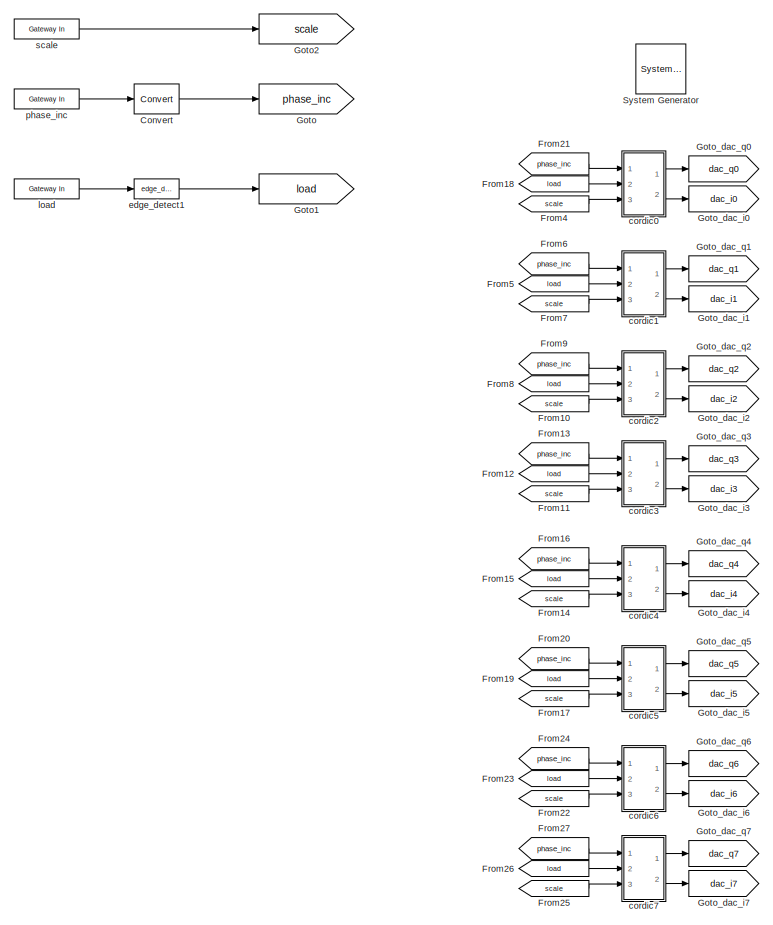
[diagram: root canvas - part 1/2, left side, full height]
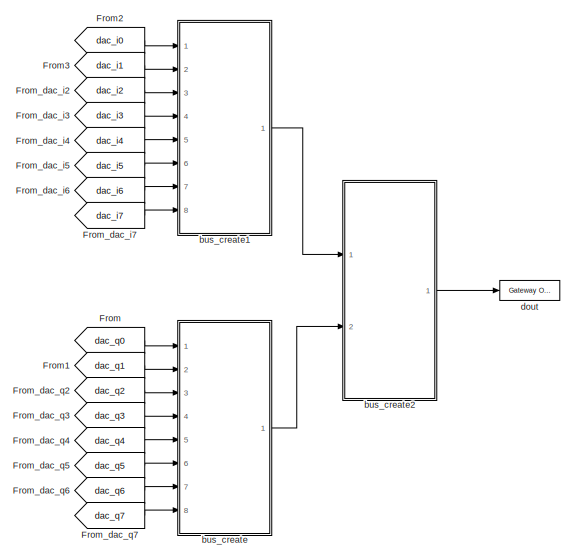
[diagram: root canvas - part 2/2, middle right region]
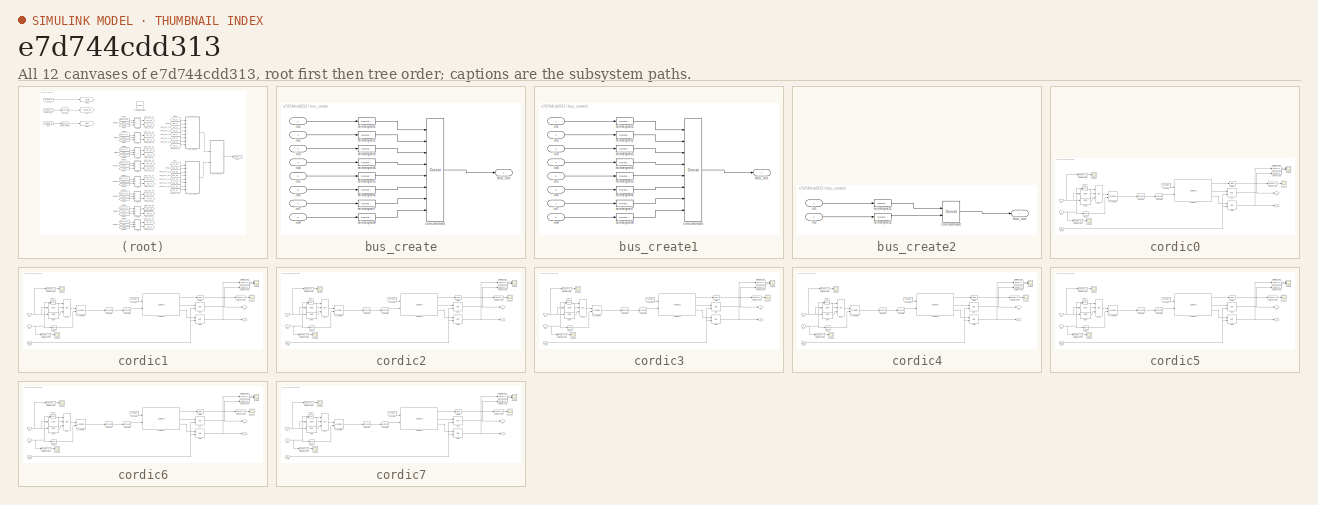
[diagram: thumbnail index - all 12 canvases of the model, root first then tree order]
MODEL slx_e7d744cdd313
KIND model
CONFIG AbsTol = auto
CONFIG EnableMultiTasking = off
CONFIG FixedStep = auto
CONFIG MaxStep = auto
CONFIG MinStep = auto
CONFIG RelTol = 1e-3
CONFIG SampleTimeConstraint = Unconstrained
CONFIG SolverName = VariableStepAuto
CONFIG StartTime = 0.0
CONFIG StopTime = 10.0
BLOCK [Reference]  System Generator  REF=xbsIndex_r4/ System Generator
  AttributesFormatString = System\nGenerator
  Ports = []
  SourceBlock = xbsIndex_r4/ System Generator
  SourceType = Xilinx System Generator Block
  Tag = genX
  UserDataPersistent = on
BLOCK [Reference] Convert  REF=xbsIndex_r4/Convert
  Ports = [1, 1]
  SourceBlock = xbsIndex_r4/Convert
  SourceType = Xilinx Type Converter Block
BLOCK [From] From
  GotoTag = dac_q0
BLOCK [From] From1
  GotoTag = dac_q1
BLOCK [From] From10
  GotoTag = scale
BLOCK [From] From11
  GotoTag = scale
BLOCK [From] From12
  GotoTag = load
BLOCK [From] From13
  GotoTag = phase_inc
BLOCK [From] From14
  GotoTag = scale
BLOCK [From] From15
  GotoTag = load
BLOCK [From] From16
  GotoTag = phase_inc
BLOCK [From] From17
  GotoTag = scale
BLOCK [From] From18
  GotoTag = load
BLOCK [From] From19
  GotoTag = load
BLOCK [From] From2
  GotoTag = dac_i0
BLOCK [From] From20
  GotoTag = phase_inc
BLOCK [From] From21
  GotoTag = phase_inc
BLOCK [From] From22
  GotoTag = scale
BLOCK [From] From23
  GotoTag = load
BLOCK [From] From24
  GotoTag = phase_inc
BLOCK [From] From25
  GotoTag = scale
BLOCK [From] From26
  GotoTag = load
BLOCK [From] From27
  GotoTag = phase_inc
BLOCK [From] From3
  GotoTag = dac_i1
BLOCK [From] From4
  GotoTag = scale
BLOCK [From] From5
  GotoTag = load
BLOCK [From] From6
  GotoTag = phase_inc
BLOCK [From] From7
  GotoTag = scale
BLOCK [From] From8
  GotoTag = load
BLOCK [From] From9
  GotoTag = phase_inc
BLOCK [From] From_dac_i2
  GotoTag = dac_i2
BLOCK [From] From_dac_i3
  GotoTag = dac_i3
BLOCK [From] From_dac_i4
  GotoTag = dac_i4
BLOCK [From] From_dac_i5
  GotoTag = dac_i5
BLOCK [From] From_dac_i6
  GotoTag = dac_i6
BLOCK [From] From_dac_i7
  GotoTag = dac_i7
BLOCK [From] From_dac_q2
  GotoTag = dac_q2
BLOCK [From] From_dac_q3
  GotoTag = dac_q3
BLOCK [From] From_dac_q4
  GotoTag = dac_q4
BLOCK [From] From_dac_q5
  GotoTag = dac_q5
BLOCK [From] From_dac_q6
  GotoTag = dac_q6
BLOCK [From] From_dac_q7
  GotoTag = dac_q7
BLOCK [Goto] Goto
  GotoTag = phase_inc
BLOCK [Goto] Goto1
  GotoTag = load
BLOCK [Goto] Goto2
  GotoTag = scale
BLOCK [Goto] Goto_dac_i0
  GotoTag = dac_i0
BLOCK [Goto] Goto_dac_i1
  GotoTag = dac_i1
BLOCK [Goto] Goto_dac_i2
  GotoTag = dac_i2
BLOCK [Goto] Goto_dac_i3
  GotoTag = dac_i3
BLOCK [Goto] Goto_dac_i4
  GotoTag = dac_i4
BLOCK [Goto] Goto_dac_i5
  GotoTag = dac_i5
BLOCK [Goto] Goto_dac_i6
  GotoTag = dac_i6
BLOCK [Goto] Goto_dac_i7
  GotoTag = dac_i7
BLOCK [Goto] Goto_dac_q0
  GotoTag = dac_q0
BLOCK [Goto] Goto_dac_q1
  GotoTag = dac_q1
BLOCK [Goto] Goto_dac_q2
  GotoTag = dac_q2
BLOCK [Goto] Goto_dac_q3
  GotoTag = dac_q3
BLOCK [Goto] Goto_dac_q4
  GotoTag = dac_q4
BLOCK [Goto] Goto_dac_q5
  GotoTag = dac_q5
BLOCK [Goto] Goto_dac_q6
  GotoTag = dac_q6
BLOCK [Goto] Goto_dac_q7
  GotoTag = dac_q7
BLOCK [SubSystem] bus_create
  AncestorBlock = casper_library_flow_control/bus_create
  Ports = [8, 1]
  RequestExecContextInheritance = off
  UserDataPersistent = on
BLOCK [Outport] bus_create/bus_out
  VectorParamsAs1DForOutWhenUnconnected = off
BLOCK [Reference] bus_create/concatenate  REF=xbsIndex_r4/Concat
  Ports = [8, 1]
  SourceBlock = xbsIndex_r4/Concat
  SourceType = Xilinx Bus Concatenator Block
BLOCK [Inport] bus_create/in1
BLOCK [Inport] bus_create/in2
  Port = 2
BLOCK [Inport] bus_create/in3
  Port = 3
BLOCK [Inport] bus_create/in4
  Port = 4
BLOCK [Inport] bus_create/in5
  Port = 5
BLOCK [Inport] bus_create/in6
  Port = 6
BLOCK [Inport] bus_create/in7
  Port = 7
BLOCK [Inport] bus_create/in8
  Port = 8
BLOCK [Reference] bus_create/reinterpret1  REF=xbsIndex_r4/Reinterpret
  Ports = [1, 1]
  SourceBlock = xbsIndex_r4/Reinterpret
  SourceType = Xilinx Type Reinterpreter Block
BLOCK [Reference] bus_create/reinterpret2  REF=xbsIndex_r4/Reinterpret
  Ports = [1, 1]
  SourceBlock = xbsIndex_r4/Reinterpret
  SourceType = Xilinx Type Reinterpreter Block
BLOCK [Reference] bus_create/reinterpret3  REF=xbsIndex_r4/Reinterpret
  Ports = [1, 1]
  SourceBlock = xbsIndex_r4/Reinterpret
  SourceType = Xilinx Type Reinterpreter Block
BLOCK [Reference] bus_create/reinterpret4  REF=xbsIndex_r4/Reinterpret
  Ports = [1, 1]
  SourceBlock = xbsIndex_r4/Reinterpret
  SourceType = Xilinx Type Reinterpreter Block
BLOCK [Reference] bus_create/reinterpret5  REF=xbsIndex_r4/Reinterpret
  Ports = [1, 1]
  SourceBlock = xbsIndex_r4/Reinterpret
  SourceType = Xilinx Type Reinterpreter Block
BLOCK [Reference] bus_create/reinterpret6  REF=xbsIndex_r4/Reinterpret
  Ports = [1, 1]
  SourceBlock = xbsIndex_r4/Reinterpret
  SourceType = Xilinx Type Reinterpreter Block
BLOCK [Reference] bus_create/reinterpret7  REF=xbsIndex_r4/Reinterpret
  Ports = [1, 1]
  SourceBlock = xbsIndex_r4/Reinterpret
  SourceType = Xilinx Type Reinterpreter Block
BLOCK [Reference] bus_create/reinterpret8  REF=xbsIndex_r4/Reinterpret
  Ports = [1, 1]
  SourceBlock = xbsIndex_r4/Reinterpret
  SourceType = Xilinx Type Reinterpreter Block
BLOCK [SubSystem] bus_create1
  AncestorBlock = casper_library_flow_control/bus_create
  Ports = [8, 1]
  RequestExecContextInheritance = off
  UserDataPersistent = on
BLOCK [Outport] bus_create1/bus_out
  VectorParamsAs1DForOutWhenUnconnected = off
BLOCK [Reference] bus_create1/concatenate  REF=xbsIndex_r4/Concat
  Ports = [8, 1]
  SourceBlock = xbsIndex_r4/Concat
  SourceType = Xilinx Bus Concatenator Block
BLOCK [Inport] bus_create1/in1
BLOCK [Inport] bus_create1/in2
  Port = 2
BLOCK [Inport] bus_create1/in3
  Port = 3
BLOCK [Inport] bus_create1/in4
  Port = 4
BLOCK [Inport] bus_create1/in5
  Port = 5
BLOCK [Inport] bus_create1/in6
  Port = 6
BLOCK [Inport] bus_create1/in7
  Port = 7
BLOCK [Inport] bus_create1/in8
  Port = 8
BLOCK [Reference] bus_create1/reinterpret1  REF=xbsIndex_r4/Reinterpret
  Ports = [1, 1]
  SourceBlock = xbsIndex_r4/Reinterpret
  SourceType = Xilinx Type Reinterpreter Block
BLOCK [Reference] bus_create1/reinterpret2  REF=xbsIndex_r4/Reinterpret
  Ports = [1, 1]
  SourceBlock = xbsIndex_r4/Reinterpret
  SourceType = Xilinx Type Reinterpreter Block
BLOCK [Reference] bus_create1/reinterpret3  REF=xbsIndex_r4/Reinterpret
  Ports = [1, 1]
  SourceBlock = xbsIndex_r4/Reinterpret
  SourceType = Xilinx Type Reinterpreter Block
BLOCK [Reference] bus_create1/reinterpret4  REF=xbsIndex_r4/Reinterpret
  Ports = [1, 1]
  SourceBlock = xbsIndex_r4/Reinterpret
  SourceType = Xilinx Type Reinterpreter Block
BLOCK [Reference] bus_create1/reinterpret5  REF=xbsIndex_r4/Reinterpret
  Ports = [1, 1]
  SourceBlock = xbsIndex_r4/Reinterpret
  SourceType = Xilinx Type Reinterpreter Block
BLOCK [Reference] bus_create1/reinterpret6  REF=xbsIndex_r4/Reinterpret
  Ports = [1, 1]
  SourceBlock = xbsIndex_r4/Reinterpret
  SourceType = Xilinx Type Reinterpreter Block
BLOCK [Reference] bus_create1/reinterpret7  REF=xbsIndex_r4/Reinterpret
  Ports = [1, 1]
  SourceBlock = xbsIndex_r4/Reinterpret
  SourceType = Xilinx Type Reinterpreter Block
BLOCK [Reference] bus_create1/reinterpret8  REF=xbsIndex_r4/Reinterpret
  Ports = [1, 1]
  SourceBlock = xbsIndex_r4/Reinterpret
  SourceType = Xilinx Type Reinterpreter Block
BLOCK [SubSystem] bus_create2
  AncestorBlock = casper_library_flow_control/bus_create
  Ports = [2, 1]
  RequestExecContextInheritance = off
  UserDataPersistent = on
BLOCK [Outport] bus_create2/bus_out
  VectorParamsAs1DForOutWhenUnconnected = off
BLOCK [Reference] bus_create2/concatenate  REF=xbsIndex_r4/Concat
  Ports = [2, 1]
  SourceBlock = xbsIndex_r4/Concat
  SourceType = Xilinx Bus Concatenator Block
BLOCK [Inport] bus_create2/in1
BLOCK [Inport] bus_create2/in2
  Port = 2
BLOCK [Reference] bus_create2/reinterpret1  REF=xbsIndex_r4/Reinterpret
  Ports = [1, 1]
  SourceBlock = xbsIndex_r4/Reinterpret
  SourceType = Xilinx Type Reinterpreter Block
BLOCK [Reference] bus_create2/reinterpret2  REF=xbsIndex_r4/Reinterpret
  Ports = [1, 1]
  SourceBlock = xbsIndex_r4/Reinterpret
  SourceType = Xilinx Type Reinterpreter Block
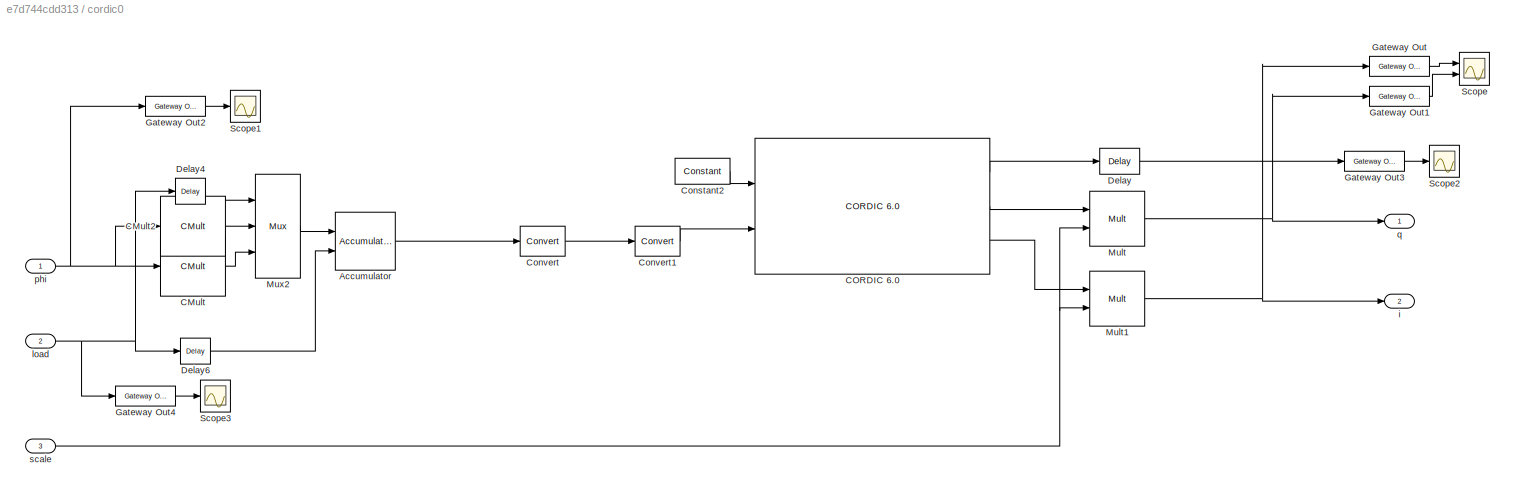
BLOCK [SubSystem] cordic0
  Ports = [3, 2]
  RequestExecContextInheritance = off
BLOCK [Reference] cordic0/Accumulator  REF=xbsIndex_r4/Accumulator
  Ports = [2, 1]
  SourceBlock = xbsIndex_r4/Accumulator
  SourceType = Xilinx Accumulator Block
BLOCK [Reference] cordic0/CMult  REF=xbsIndex_r4/CMult
  Ports = [1, 1]
  SourceBlock = xbsIndex_r4/CMult
  SourceType = Xilinx Constant Multiplier Block
BLOCK [Reference] cordic0/CMult2  REF=xbsIndex_r4/CMult
  Ports = [1, 1]
  SourceBlock = xbsIndex_r4/CMult
  SourceType = Xilinx Constant Multiplier Block
BLOCK [Reference] cordic0/CORDIC 6.0   REF=xbsIndex_r4/CORDIC 6.0 
  Ports = [2, 3]
  SourceBlock = xbsIndex_r4/CORDIC 6.0
  SourceType = Xilinx CORDIC 6.0 Block
BLOCK [Reference] cordic0/Constant2  REF=xbsIndex_r4/Constant
  Ports = [0, 1]
  SourceBlock = xbsIndex_r4/Constant
  SourceType = Xilinx Constant Block Block
BLOCK [Reference] cordic0/Convert  REF=xbsIndex_r4/Convert
  Ports = [1, 1]
  SourceBlock = xbsIndex_r4/Convert
  SourceType = Xilinx Type Converter Block
BLOCK [Reference] cordic0/Convert1  REF=xbsIndex_r4/Convert
  Ports = [1, 1]
  SourceBlock = xbsIndex_r4/Convert
  SourceType = Xilinx Type Converter Block
BLOCK [Reference] cordic0/Delay  REF=xbsIndex_r4/Delay
  Ports = [1, 1]
  SourceBlock = xbsIndex_r4/Delay
  SourceType = Xilinx Delay Block
BLOCK [Reference] cordic0/Delay4  REF=xbsIndex_r4/Delay
  Ports = [1, 1]
  SourceBlock = xbsIndex_r4/Delay
  SourceType = Xilinx Delay Block
BLOCK [Reference] cordic0/Delay6  REF=xbsIndex_r4/Delay
  Ports = [1, 1]
  SourceBlock = xbsIndex_r4/Delay
  SourceType = Xilinx Delay Block
BLOCK [Reference] cordic0/Gateway Out  REF=xbsIndex_r4/Gateway Out
  Ports = [1, 1]
  SourceBlock = xbsIndex_r4/Gateway Out
  SourceType = Xilinx Gateway Out Block
BLOCK [Reference] cordic0/Gateway Out1  REF=xbsIndex_r4/Gateway Out
  Ports = [1, 1]
  SourceBlock = xbsIndex_r4/Gateway Out
  SourceType = Xilinx Gateway Out Block
BLOCK [Reference] cordic0/Gateway Out2  REF=xbsIndex_r4/Gateway Out
  Ports = [1, 1]
  SourceBlock = xbsIndex_r4/Gateway Out
  SourceType = Xilinx Gateway Out Block
BLOCK [Reference] cordic0/Gateway Out3  REF=xbsIndex_r4/Gateway Out
  Ports = [1, 1]
  SourceBlock = xbsIndex_r4/Gateway Out
  SourceType = Xilinx Gateway Out Block
BLOCK [Reference] cordic0/Gateway Out4  REF=xbsIndex_r4/Gateway Out
  Ports = [1, 1]
  SourceBlock = xbsIndex_r4/Gateway Out
  SourceType = Xilinx Gateway Out Block
BLOCK [Reference] cordic0/Mult  REF=xbsIndex_r4/Mult
  Ports = [2, 1]
  SourceBlock = xbsIndex_r4/Mult
  SourceType = Xilinx Multiplier Block
BLOCK [Reference] cordic0/Mult1  REF=xbsIndex_r4/Mult
  Ports = [2, 1]
  SourceBlock = xbsIndex_r4/Mult
  SourceType = Xilinx Multiplier Block
BLOCK [Reference] cordic0/Mux2  REF=xbsIndex_r4/Mux
  Ports = [3, 1]
  SourceBlock = xbsIndex_r4/Mux
  SourceType = Xilinx Bus Multiplexer Block
BLOCK [Scope] cordic0/Scope
  Floating = off
  NumInputPorts = 2
  Ports = [2]
  ScopeSpecificationString = Simulink.scopes.TimeScopeBlockCfg('CurrentConfiguration', extmgr.ConfigurationSet(extmgr.Configuration('Core','General UI',true),extmgr.Configuration('Core','Source UI',true),extmgr.Configuration('Sources','WiredSimulink',true),extmgr.Configuration('Visuals','Time Domain',true,'SerializedDisplays',{struct('MinYLimReal','-1.2478','MaxYLimReal','1.24976','YLabelReal','','MinYLimMag','0.00000','MaxYL...<+1419ch>  <repeated x8 — deduplicated; at blocks: Scope>
BLOCK [Scope] cordic0/Scope1
  Floating = off
  NumInputPorts = 1
  Ports = [1]
  ScopeSpecificationString = Simulink.scopes.TimeScopeBlockCfg('CurrentConfiguration', extmgr.ConfigurationSet(extmgr.Configuration('Core','General UI',true),extmgr.Configuration('Core','Source UI',true),extmgr.Configuration('Sources','WiredSimulink',true,'DataLoggingVariableName','ScopeData1'),extmgr.Configuration('Visuals','Time Domain',true,'SerializedDisplays',{struct('MinYLimReal','-0.01125','MaxYLimReal','0.00125','YLab...<+1400ch>  <repeated x8 — deduplicated; at blocks: Scope1>
BLOCK [Scope] cordic0/Scope2
  Floating = off
  NumInputPorts = 1
  Ports = [1]
  ScopeSpecificationString = Simulink.scopes.TimeScopeBlockCfg('CurrentConfiguration', extmgr.ConfigurationSet(extmgr.Configuration('Core','General UI',true),extmgr.Configuration('Core','Source UI',true),extmgr.Configuration('Sources','WiredSimulink',true,'DataLoggingVariableName','ScopeData2'),extmgr.Configuration('Visuals','Time Domain',true,'SerializedDisplays',{struct('MinYLimReal','-0.00002','MaxYLimReal','0.00014','YLab...<+1399ch>  <repeated x8 — deduplicated; at blocks: Scope2>
BLOCK [Scope] cordic0/Scope3
  Floating = off
  NumInputPorts = 1
  Ports = [1]
  ScopeSpecificationString = Simulink.scopes.TimeScopeBlockCfg('CurrentConfiguration', extmgr.ConfigurationSet(extmgr.Configuration('Core','General UI',true),extmgr.Configuration('Core','Source UI',true),extmgr.Configuration('Sources','WiredSimulink',true,'DataLoggingVariableName','ScopeData2'),extmgr.Configuration('Visuals','Time Domain',true,'SerializedDisplays',{struct('MinYLimReal','-0.125','MaxYLimReal','1.125','YLabelRe...<+1388ch>  <repeated x8 — deduplicated; at blocks: Scope3>
BLOCK [Outport] cordic0/i
  Port = 2
  VectorParamsAs1DForOutWhenUnconnected = off
BLOCK [Inport] cordic0/load
  Port = 2
BLOCK [Inport] cordic0/phi
BLOCK [Outport] cordic0/q
  VectorParamsAs1DForOutWhenUnconnected = off
BLOCK [Inport] cordic0/scale
  Port = 3
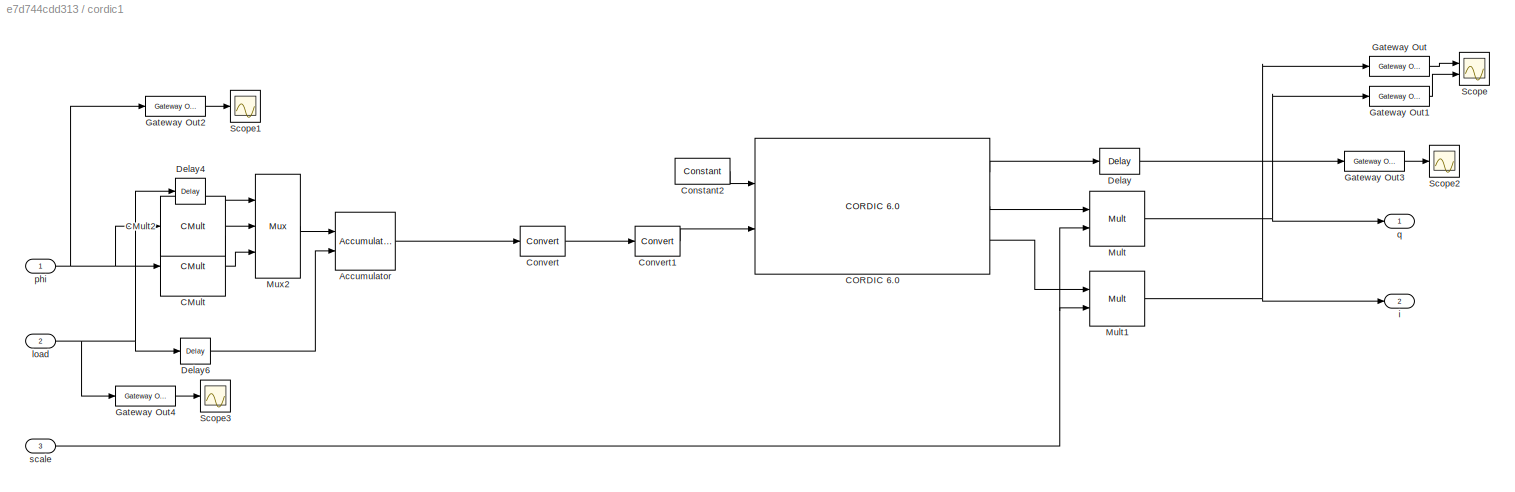
BLOCK [SubSystem] cordic1
  Ports = [3, 2]
  RequestExecContextInheritance = off
BLOCK [Reference] cordic1/Accumulator  REF=xbsIndex_r4/Accumulator
  Ports = [2, 1]
  SourceBlock = xbsIndex_r4/Accumulator
  SourceType = Xilinx Accumulator Block
BLOCK [Reference] cordic1/CMult  REF=xbsIndex_r4/CMult
  Ports = [1, 1]
  SourceBlock = xbsIndex_r4/CMult
  SourceType = Xilinx Constant Multiplier Block
BLOCK [Reference] cordic1/CMult2  REF=xbsIndex_r4/CMult
  Ports = [1, 1]
  SourceBlock = xbsIndex_r4/CMult
  SourceType = Xilinx Constant Multiplier Block
BLOCK [Reference] cordic1/CORDIC 6.0   REF=xbsIndex_r4/CORDIC 6.0 
  Ports = [2, 3]
  SourceBlock = xbsIndex_r4/CORDIC 6.0
  SourceType = Xilinx CORDIC 6.0 Block
BLOCK [Reference] cordic1/Constant2  REF=xbsIndex_r4/Constant
  Ports = [0, 1]
  SourceBlock = xbsIndex_r4/Constant
  SourceType = Xilinx Constant Block Block
BLOCK [Reference] cordic1/Convert  REF=xbsIndex_r4/Convert
  Ports = [1, 1]
  SourceBlock = xbsIndex_r4/Convert
  SourceType = Xilinx Type Converter Block
BLOCK [Reference] cordic1/Convert1  REF=xbsIndex_r4/Convert
  Ports = [1, 1]
  SourceBlock = xbsIndex_r4/Convert
  SourceType = Xilinx Type Converter Block
BLOCK [Reference] cordic1/Delay  REF=xbsIndex_r4/Delay
  Ports = [1, 1]
  SourceBlock = xbsIndex_r4/Delay
  SourceType = Xilinx Delay Block
BLOCK [Reference] cordic1/Delay4  REF=xbsIndex_r4/Delay
  Ports = [1, 1]
  SourceBlock = xbsIndex_r4/Delay
  SourceType = Xilinx Delay Block
BLOCK [Reference] cordic1/Delay6  REF=xbsIndex_r4/Delay
  Ports = [1, 1]
  SourceBlock = xbsIndex_r4/Delay
  SourceType = Xilinx Delay Block
BLOCK [Reference] cordic1/Gateway Out  REF=xbsIndex_r4/Gateway Out
  Ports = [1, 1]
  SourceBlock = xbsIndex_r4/Gateway Out
  SourceType = Xilinx Gateway Out Block
BLOCK [Reference] cordic1/Gateway Out1  REF=xbsIndex_r4/Gateway Out
  Ports = [1, 1]
  SourceBlock = xbsIndex_r4/Gateway Out
  SourceType = Xilinx Gateway Out Block
BLOCK [Reference] cordic1/Gateway Out2  REF=xbsIndex_r4/Gateway Out
  Ports = [1, 1]
  SourceBlock = xbsIndex_r4/Gateway Out
  SourceType = Xilinx Gateway Out Block
BLOCK [Reference] cordic1/Gateway Out3  REF=xbsIndex_r4/Gateway Out
  Ports = [1, 1]
  SourceBlock = xbsIndex_r4/Gateway Out
  SourceType = Xilinx Gateway Out Block
BLOCK [Reference] cordic1/Gateway Out4  REF=xbsIndex_r4/Gateway Out
  Ports = [1, 1]
  SourceBlock = xbsIndex_r4/Gateway Out
  SourceType = Xilinx Gateway Out Block
BLOCK [Reference] cordic1/Mult  REF=xbsIndex_r4/Mult
  Ports = [2, 1]
  SourceBlock = xbsIndex_r4/Mult
  SourceType = Xilinx Multiplier Block
BLOCK [Reference] cordic1/Mult1  REF=xbsIndex_r4/Mult
  Ports = [2, 1]
  SourceBlock = xbsIndex_r4/Mult
  SourceType = Xilinx Multiplier Block
BLOCK [Reference] cordic1/Mux2  REF=xbsIndex_r4/Mux
  Ports = [3, 1]
  SourceBlock = xbsIndex_r4/Mux
  SourceType = Xilinx Bus Multiplexer Block
BLOCK [Scope] cordic1/Scope
  Floating = off
  NumInputPorts = 2
  Ports = [2]
BLOCK [Scope] cordic1/Scope1
  Floating = off
  NumInputPorts = 1
  Ports = [1]
BLOCK [Scope] cordic1/Scope2
  Floating = off
  NumInputPorts = 1
  Ports = [1]
BLOCK [Scope] cordic1/Scope3
  Floating = off
  NumInputPorts = 1
  Ports = [1]
BLOCK [Outport] cordic1/i
  Port = 2
  VectorParamsAs1DForOutWhenUnconnected = off
BLOCK [Inport] cordic1/load
  Port = 2
BLOCK [Inport] cordic1/phi
BLOCK [Outport] cordic1/q
  VectorParamsAs1DForOutWhenUnconnected = off
BLOCK [Inport] cordic1/scale
  Port = 3
BLOCK [SubSystem] cordic2
  Ports = [3, 2]
  RequestExecContextInheritance = off
BLOCK [Reference] cordic2/Accumulator  REF=xbsIndex_r4/Accumulator
  Ports = [2, 1]
  SourceBlock = xbsIndex_r4/Accumulator
  SourceType = Xilinx Accumulator Block
BLOCK [Reference] cordic2/CMult  REF=xbsIndex_r4/CMult
  Ports = [1, 1]
  SourceBlock = xbsIndex_r4/CMult
  SourceType = Xilinx Constant Multiplier Block
BLOCK [Reference] cordic2/CMult2  REF=xbsIndex_r4/CMult
  Ports = [1, 1]
  SourceBlock = xbsIndex_r4/CMult
  SourceType = Xilinx Constant Multiplier Block
BLOCK [Reference] cordic2/CORDIC 6.0   REF=xbsIndex_r4/CORDIC 6.0 
  Ports = [2, 3]
  SourceBlock = xbsIndex_r4/CORDIC 6.0
  SourceType = Xilinx CORDIC 6.0 Block
BLOCK [Reference] cordic2/Constant2  REF=xbsIndex_r4/Constant
  Ports = [0, 1]
  SourceBlock = xbsIndex_r4/Constant
  SourceType = Xilinx Constant Block Block
BLOCK [Reference] cordic2/Convert  REF=xbsIndex_r4/Convert
  Ports = [1, 1]
  SourceBlock = xbsIndex_r4/Convert
  SourceType = Xilinx Type Converter Block
BLOCK [Reference] cordic2/Convert1  REF=xbsIndex_r4/Convert
  Ports = [1, 1]
  SourceBlock = xbsIndex_r4/Convert
  SourceType = Xilinx Type Converter Block
BLOCK [Reference] cordic2/Delay  REF=xbsIndex_r4/Delay
  Ports = [1, 1]
  SourceBlock = xbsIndex_r4/Delay
  SourceType = Xilinx Delay Block
BLOCK [Reference] cordic2/Delay4  REF=xbsIndex_r4/Delay
  Ports = [1, 1]
  SourceBlock = xbsIndex_r4/Delay
  SourceType = Xilinx Delay Block
BLOCK [Reference] cordic2/Delay6  REF=xbsIndex_r4/Delay
  Ports = [1, 1]
  SourceBlock = xbsIndex_r4/Delay
  SourceType = Xilinx Delay Block
BLOCK [Reference] cordic2/Gateway Out  REF=xbsIndex_r4/Gateway Out
  Ports = [1, 1]
  SourceBlock = xbsIndex_r4/Gateway Out
  SourceType = Xilinx Gateway Out Block
BLOCK [Reference] cordic2/Gateway Out1  REF=xbsIndex_r4/Gateway Out
  Ports = [1, 1]
  SourceBlock = xbsIndex_r4/Gateway Out
  SourceType = Xilinx Gateway Out Block
BLOCK [Reference] cordic2/Gateway Out2  REF=xbsIndex_r4/Gateway Out
  Ports = [1, 1]
  SourceBlock = xbsIndex_r4/Gateway Out
  SourceType = Xilinx Gateway Out Block
BLOCK [Reference] cordic2/Gateway Out3  REF=xbsIndex_r4/Gateway Out
  Ports = [1, 1]
  SourceBlock = xbsIndex_r4/Gateway Out
  SourceType = Xilinx Gateway Out Block
BLOCK [Reference] cordic2/Gateway Out4  REF=xbsIndex_r4/Gateway Out
  Ports = [1, 1]
  SourceBlock = xbsIndex_r4/Gateway Out
  SourceType = Xilinx Gateway Out Block
BLOCK [Reference] cordic2/Mult  REF=xbsIndex_r4/Mult
  Ports = [2, 1]
  SourceBlock = xbsIndex_r4/Mult
  SourceType = Xilinx Multiplier Block
BLOCK [Reference] cordic2/Mult1  REF=xbsIndex_r4/Mult
  Ports = [2, 1]
  SourceBlock = xbsIndex_r4/Mult
  SourceType = Xilinx Multiplier Block
BLOCK [Reference] cordic2/Mux2  REF=xbsIndex_r4/Mux
  Ports = [3, 1]
  SourceBlock = xbsIndex_r4/Mux
  SourceType = Xilinx Bus Multiplexer Block
BLOCK [Scope] cordic2/Scope
  Floating = off
  NumInputPorts = 2
  Ports = [2]
BLOCK [Scope] cordic2/Scope1
  Floating = off
  NumInputPorts = 1
  Ports = [1]
BLOCK [Scope] cordic2/Scope2
  Floating = off
  NumInputPorts = 1
  Ports = [1]
BLOCK [Scope] cordic2/Scope3
  Floating = off
  NumInputPorts = 1
  Ports = [1]
BLOCK [Outport] cordic2/i
  Port = 2
  VectorParamsAs1DForOutWhenUnconnected = off
BLOCK [Inport] cordic2/load
  Port = 2
BLOCK [Inport] cordic2/phi
BLOCK [Outport] cordic2/q
  VectorParamsAs1DForOutWhenUnconnected = off
BLOCK [Inport] cordic2/scale
  Port = 3
BLOCK [SubSystem] cordic3
  Ports = [3, 2]
  RequestExecContextInheritance = off
BLOCK [Reference] cordic3/Accumulator  REF=xbsIndex_r4/Accumulator
  Ports = [2, 1]
  SourceBlock = xbsIndex_r4/Accumulator
  SourceType = Xilinx Accumulator Block
BLOCK [Reference] cordic3/CMult  REF=xbsIndex_r4/CMult
  Ports = [1, 1]
  SourceBlock = xbsIndex_r4/CMult
  SourceType = Xilinx Constant Multiplier Block
BLOCK [Reference] cordic3/CMult2  REF=xbsIndex_r4/CMult
  Ports = [1, 1]
  SourceBlock = xbsIndex_r4/CMult
  SourceType = Xilinx Constant Multiplier Block
BLOCK [Reference] cordic3/CORDIC 6.0   REF=xbsIndex_r4/CORDIC 6.0 
  Ports = [2, 3]
  SourceBlock = xbsIndex_r4/CORDIC 6.0
  SourceType = Xilinx CORDIC 6.0 Block
BLOCK [Reference] cordic3/Constant2  REF=xbsIndex_r4/Constant
  Ports = [0, 1]
  SourceBlock = xbsIndex_r4/Constant
  SourceType = Xilinx Constant Block Block
BLOCK [Reference] cordic3/Convert  REF=xbsIndex_r4/Convert
  Ports = [1, 1]
  SourceBlock = xbsIndex_r4/Convert
  SourceType = Xilinx Type Converter Block
BLOCK [Reference] cordic3/Convert1  REF=xbsIndex_r4/Convert
  Ports = [1, 1]
  SourceBlock = xbsIndex_r4/Convert
  SourceType = Xilinx Type Converter Block
BLOCK [Reference] cordic3/Delay  REF=xbsIndex_r4/Delay
  Ports = [1, 1]
  SourceBlock = xbsIndex_r4/Delay
  SourceType = Xilinx Delay Block
BLOCK [Reference] cordic3/Delay4  REF=xbsIndex_r4/Delay
  Ports = [1, 1]
  SourceBlock = xbsIndex_r4/Delay
  SourceType = Xilinx Delay Block
BLOCK [Reference] cordic3/Delay6  REF=xbsIndex_r4/Delay
  Ports = [1, 1]
  SourceBlock = xbsIndex_r4/Delay
  SourceType = Xilinx Delay Block
BLOCK [Reference] cordic3/Gateway Out  REF=xbsIndex_r4/Gateway Out
  Ports = [1, 1]
  SourceBlock = xbsIndex_r4/Gateway Out
  SourceType = Xilinx Gateway Out Block
BLOCK [Reference] cordic3/Gateway Out1  REF=xbsIndex_r4/Gateway Out
  Ports = [1, 1]
  SourceBlock = xbsIndex_r4/Gateway Out
  SourceType = Xilinx Gateway Out Block
BLOCK [Reference] cordic3/Gateway Out2  REF=xbsIndex_r4/Gateway Out
  Ports = [1, 1]
  SourceBlock = xbsIndex_r4/Gateway Out
  SourceType = Xilinx Gateway Out Block
BLOCK [Reference] cordic3/Gateway Out3  REF=xbsIndex_r4/Gateway Out
  Ports = [1, 1]
  SourceBlock = xbsIndex_r4/Gateway Out
  SourceType = Xilinx Gateway Out Block
BLOCK [Reference] cordic3/Gateway Out4  REF=xbsIndex_r4/Gateway Out
  Ports = [1, 1]
  SourceBlock = xbsIndex_r4/Gateway Out
  SourceType = Xilinx Gateway Out Block
BLOCK [Reference] cordic3/Mult  REF=xbsIndex_r4/Mult
  Ports = [2, 1]
  SourceBlock = xbsIndex_r4/Mult
  SourceType = Xilinx Multiplier Block
BLOCK [Reference] cordic3/Mult1  REF=xbsIndex_r4/Mult
  Ports = [2, 1]
  SourceBlock = xbsIndex_r4/Mult
  SourceType = Xilinx Multiplier Block
BLOCK [Reference] cordic3/Mux2  REF=xbsIndex_r4/Mux
  Ports = [3, 1]
  SourceBlock = xbsIndex_r4/Mux
  SourceType = Xilinx Bus Multiplexer Block
BLOCK [Scope] cordic3/Scope
  Floating = off
  NumInputPorts = 2
  Ports = [2]
BLOCK [Scope] cordic3/Scope1
  Floating = off
  NumInputPorts = 1
  Ports = [1]
BLOCK [Scope] cordic3/Scope2
  Floating = off
  NumInputPorts = 1
  Ports = [1]
BLOCK [Scope] cordic3/Scope3
  Floating = off
  NumInputPorts = 1
  Ports = [1]
BLOCK [Outport] cordic3/i
  Port = 2
  VectorParamsAs1DForOutWhenUnconnected = off
BLOCK [Inport] cordic3/load
  Port = 2
BLOCK [Inport] cordic3/phi
BLOCK [Outport] cordic3/q
  VectorParamsAs1DForOutWhenUnconnected = off
BLOCK [Inport] cordic3/scale
  Port = 3
BLOCK [SubSystem] cordic4
  Ports = [3, 2]
  RequestExecContextInheritance = off
BLOCK [Reference] cordic4/Accumulator  REF=xbsIndex_r4/Accumulator
  Ports = [2, 1]
  SourceBlock = xbsIndex_r4/Accumulator
  SourceType = Xilinx Accumulator Block
BLOCK [Reference] cordic4/CMult  REF=xbsIndex_r4/CMult
  Ports = [1, 1]
  SourceBlock = xbsIndex_r4/CMult
  SourceType = Xilinx Constant Multiplier Block
BLOCK [Reference] cordic4/CMult2  REF=xbsIndex_r4/CMult
  Ports = [1, 1]
  SourceBlock = xbsIndex_r4/CMult
  SourceType = Xilinx Constant Multiplier Block
BLOCK [Reference] cordic4/CORDIC 6.0   REF=xbsIndex_r4/CORDIC 6.0 
  Ports = [2, 3]
  SourceBlock = xbsIndex_r4/CORDIC 6.0
  SourceType = Xilinx CORDIC 6.0 Block
BLOCK [Reference] cordic4/Constant2  REF=xbsIndex_r4/Constant
  Ports = [0, 1]
  SourceBlock = xbsIndex_r4/Constant
  SourceType = Xilinx Constant Block Block
BLOCK [Reference] cordic4/Convert  REF=xbsIndex_r4/Convert
  Ports = [1, 1]
  SourceBlock = xbsIndex_r4/Convert
  SourceType = Xilinx Type Converter Block
BLOCK [Reference] cordic4/Convert1  REF=xbsIndex_r4/Convert
  Ports = [1, 1]
  SourceBlock = xbsIndex_r4/Convert
  SourceType = Xilinx Type Converter Block
BLOCK [Reference] cordic4/Delay  REF=xbsIndex_r4/Delay
  Ports = [1, 1]
  SourceBlock = xbsIndex_r4/Delay
  SourceType = Xilinx Delay Block
BLOCK [Reference] cordic4/Delay4  REF=xbsIndex_r4/Delay
  Ports = [1, 1]
  SourceBlock = xbsIndex_r4/Delay
  SourceType = Xilinx Delay Block
BLOCK [Reference] cordic4/Delay6  REF=xbsIndex_r4/Delay
  Ports = [1, 1]
  SourceBlock = xbsIndex_r4/Delay
  SourceType = Xilinx Delay Block
BLOCK [Reference] cordic4/Gateway Out  REF=xbsIndex_r4/Gateway Out
  Ports = [1, 1]
  SourceBlock = xbsIndex_r4/Gateway Out
  SourceType = Xilinx Gateway Out Block
BLOCK [Reference] cordic4/Gateway Out1  REF=xbsIndex_r4/Gateway Out
  Ports = [1, 1]
  SourceBlock = xbsIndex_r4/Gateway Out
  SourceType = Xilinx Gateway Out Block
BLOCK [Reference] cordic4/Gateway Out2  REF=xbsIndex_r4/Gateway Out
  Ports = [1, 1]
  SourceBlock = xbsIndex_r4/Gateway Out
  SourceType = Xilinx Gateway Out Block
BLOCK [Reference] cordic4/Gateway Out3  REF=xbsIndex_r4/Gateway Out
  Ports = [1, 1]
  SourceBlock = xbsIndex_r4/Gateway Out
  SourceType = Xilinx Gateway Out Block
BLOCK [Reference] cordic4/Gateway Out4  REF=xbsIndex_r4/Gateway Out
  Ports = [1, 1]
  SourceBlock = xbsIndex_r4/Gateway Out
  SourceType = Xilinx Gateway Out Block
BLOCK [Reference] cordic4/Mult  REF=xbsIndex_r4/Mult
  Ports = [2, 1]
  SourceBlock = xbsIndex_r4/Mult
  SourceType = Xilinx Multiplier Block
BLOCK [Reference] cordic4/Mult1  REF=xbsIndex_r4/Mult
  Ports = [2, 1]
  SourceBlock = xbsIndex_r4/Mult
  SourceType = Xilinx Multiplier Block
BLOCK [Reference] cordic4/Mux2  REF=xbsIndex_r4/Mux
  Ports = [3, 1]
  SourceBlock = xbsIndex_r4/Mux
  SourceType = Xilinx Bus Multiplexer Block
BLOCK [Scope] cordic4/Scope
  Floating = off
  NumInputPorts = 2
  Ports = [2]
BLOCK [Scope] cordic4/Scope1
  Floating = off
  NumInputPorts = 1
  Ports = [1]
BLOCK [Scope] cordic4/Scope2
  Floating = off
  NumInputPorts = 1
  Ports = [1]
BLOCK [Scope] cordic4/Scope3
  Floating = off
  NumInputPorts = 1
  Ports = [1]
BLOCK [Outport] cordic4/i
  Port = 2
  VectorParamsAs1DForOutWhenUnconnected = off
BLOCK [Inport] cordic4/load
  Port = 2
BLOCK [Inport] cordic4/phi
BLOCK [Outport] cordic4/q
  VectorParamsAs1DForOutWhenUnconnected = off
BLOCK [Inport] cordic4/scale
  Port = 3
BLOCK [SubSystem] cordic5
  Ports = [3, 2]
  RequestExecContextInheritance = off
BLOCK [Reference] cordic5/Accumulator  REF=xbsIndex_r4/Accumulator
  Ports = [2, 1]
  SourceBlock = xbsIndex_r4/Accumulator
  SourceType = Xilinx Accumulator Block
BLOCK [Reference] cordic5/CMult  REF=xbsIndex_r4/CMult
  Ports = [1, 1]
  SourceBlock = xbsIndex_r4/CMult
  SourceType = Xilinx Constant Multiplier Block
BLOCK [Reference] cordic5/CMult2  REF=xbsIndex_r4/CMult
  Ports = [1, 1]
  SourceBlock = xbsIndex_r4/CMult
  SourceType = Xilinx Constant Multiplier Block
BLOCK [Reference] cordic5/CORDIC 6.0   REF=xbsIndex_r4/CORDIC 6.0 
  Ports = [2, 3]
  SourceBlock = xbsIndex_r4/CORDIC 6.0
  SourceType = Xilinx CORDIC 6.0 Block
BLOCK [Reference] cordic5/Constant2  REF=xbsIndex_r4/Constant
  Ports = [0, 1]
  SourceBlock = xbsIndex_r4/Constant
  SourceType = Xilinx Constant Block Block
BLOCK [Reference] cordic5/Convert  REF=xbsIndex_r4/Convert
  Ports = [1, 1]
  SourceBlock = xbsIndex_r4/Convert
  SourceType = Xilinx Type Converter Block
BLOCK [Reference] cordic5/Convert1  REF=xbsIndex_r4/Convert
  Ports = [1, 1]
  SourceBlock = xbsIndex_r4/Convert
  SourceType = Xilinx Type Converter Block
BLOCK [Reference] cordic5/Delay  REF=xbsIndex_r4/Delay
  Ports = [1, 1]
  SourceBlock = xbsIndex_r4/Delay
  SourceType = Xilinx Delay Block
BLOCK [Reference] cordic5/Delay4  REF=xbsIndex_r4/Delay
  Ports = [1, 1]
  SourceBlock = xbsIndex_r4/Delay
  SourceType = Xilinx Delay Block
BLOCK [Reference] cordic5/Delay6  REF=xbsIndex_r4/Delay
  Ports = [1, 1]
  SourceBlock = xbsIndex_r4/Delay
  SourceType = Xilinx Delay Block
BLOCK [Reference] cordic5/Gateway Out  REF=xbsIndex_r4/Gateway Out
  Ports = [1, 1]
  SourceBlock = xbsIndex_r4/Gateway Out
  SourceType = Xilinx Gateway Out Block
BLOCK [Reference] cordic5/Gateway Out1  REF=xbsIndex_r4/Gateway Out
  Ports = [1, 1]
  SourceBlock = xbsIndex_r4/Gateway Out
  SourceType = Xilinx Gateway Out Block
BLOCK [Reference] cordic5/Gateway Out2  REF=xbsIndex_r4/Gateway Out
  Ports = [1, 1]
  SourceBlock = xbsIndex_r4/Gateway Out
  SourceType = Xilinx Gateway Out Block
BLOCK [Reference] cordic5/Gateway Out3  REF=xbsIndex_r4/Gateway Out
  Ports = [1, 1]
  SourceBlock = xbsIndex_r4/Gateway Out
  SourceType = Xilinx Gateway Out Block
BLOCK [Reference] cordic5/Gateway Out4  REF=xbsIndex_r4/Gateway Out
  Ports = [1, 1]
  SourceBlock = xbsIndex_r4/Gateway Out
  SourceType = Xilinx Gateway Out Block
BLOCK [Reference] cordic5/Mult  REF=xbsIndex_r4/Mult
  Ports = [2, 1]
  SourceBlock = xbsIndex_r4/Mult
  SourceType = Xilinx Multiplier Block
BLOCK [Reference] cordic5/Mult1  REF=xbsIndex_r4/Mult
  Ports = [2, 1]
  SourceBlock = xbsIndex_r4/Mult
  SourceType = Xilinx Multiplier Block
BLOCK [Reference] cordic5/Mux2  REF=xbsIndex_r4/Mux
  Ports = [3, 1]
  SourceBlock = xbsIndex_r4/Mux
  SourceType = Xilinx Bus Multiplexer Block
BLOCK [Scope] cordic5/Scope
  Floating = off
  NumInputPorts = 2
  Ports = [2]
BLOCK [Scope] cordic5/Scope1
  Floating = off
  NumInputPorts = 1
  Ports = [1]
BLOCK [Scope] cordic5/Scope2
  Floating = off
  NumInputPorts = 1
  Ports = [1]
BLOCK [Scope] cordic5/Scope3
  Floating = off
  NumInputPorts = 1
  Ports = [1]
BLOCK [Outport] cordic5/i
  Port = 2
  VectorParamsAs1DForOutWhenUnconnected = off
BLOCK [Inport] cordic5/load
  Port = 2
BLOCK [Inport] cordic5/phi
BLOCK [Outport] cordic5/q
  VectorParamsAs1DForOutWhenUnconnected = off
BLOCK [Inport] cordic5/scale
  Port = 3
BLOCK [SubSystem] cordic6
  Ports = [3, 2]
  RequestExecContextInheritance = off
BLOCK [Reference] cordic6/Accumulator  REF=xbsIndex_r4/Accumulator
  Ports = [2, 1]
  SourceBlock = xbsIndex_r4/Accumulator
  SourceType = Xilinx Accumulator Block
BLOCK [Reference] cordic6/CMult  REF=xbsIndex_r4/CMult
  Ports = [1, 1]
  SourceBlock = xbsIndex_r4/CMult
  SourceType = Xilinx Constant Multiplier Block
BLOCK [Reference] cordic6/CMult2  REF=xbsIndex_r4/CMult
  Ports = [1, 1]
  SourceBlock = xbsIndex_r4/CMult
  SourceType = Xilinx Constant Multiplier Block
BLOCK [Reference] cordic6/CORDIC 6.0   REF=xbsIndex_r4/CORDIC 6.0 
  Ports = [2, 3]
  SourceBlock = xbsIndex_r4/CORDIC 6.0
  SourceType = Xilinx CORDIC 6.0 Block
BLOCK [Reference] cordic6/Constant2  REF=xbsIndex_r4/Constant
  Ports = [0, 1]
  SourceBlock = xbsIndex_r4/Constant
  SourceType = Xilinx Constant Block Block
BLOCK [Reference] cordic6/Convert  REF=xbsIndex_r4/Convert
  Ports = [1, 1]
  SourceBlock = xbsIndex_r4/Convert
  SourceType = Xilinx Type Converter Block
BLOCK [Reference] cordic6/Convert1  REF=xbsIndex_r4/Convert
  Ports = [1, 1]
  SourceBlock = xbsIndex_r4/Convert
  SourceType = Xilinx Type Converter Block
BLOCK [Reference] cordic6/Delay  REF=xbsIndex_r4/Delay
  Ports = [1, 1]
  SourceBlock = xbsIndex_r4/Delay
  SourceType = Xilinx Delay Block
BLOCK [Reference] cordic6/Delay4  REF=xbsIndex_r4/Delay
  Ports = [1, 1]
  SourceBlock = xbsIndex_r4/Delay
  SourceType = Xilinx Delay Block
BLOCK [Reference] cordic6/Delay6  REF=xbsIndex_r4/Delay
  Ports = [1, 1]
  SourceBlock = xbsIndex_r4/Delay
  SourceType = Xilinx Delay Block
BLOCK [Reference] cordic6/Gateway Out  REF=xbsIndex_r4/Gateway Out
  Ports = [1, 1]
  SourceBlock = xbsIndex_r4/Gateway Out
  SourceType = Xilinx Gateway Out Block
BLOCK [Reference] cordic6/Gateway Out1  REF=xbsIndex_r4/Gateway Out
  Ports = [1, 1]
  SourceBlock = xbsIndex_r4/Gateway Out
  SourceType = Xilinx Gateway Out Block
BLOCK [Reference] cordic6/Gateway Out2  REF=xbsIndex_r4/Gateway Out
  Ports = [1, 1]
  SourceBlock = xbsIndex_r4/Gateway Out
  SourceType = Xilinx Gateway Out Block
BLOCK [Reference] cordic6/Gateway Out3  REF=xbsIndex_r4/Gateway Out
  Ports = [1, 1]
  SourceBlock = xbsIndex_r4/Gateway Out
  SourceType = Xilinx Gateway Out Block
BLOCK [Reference] cordic6/Gateway Out4  REF=xbsIndex_r4/Gateway Out
  Ports = [1, 1]
  SourceBlock = xbsIndex_r4/Gateway Out
  SourceType = Xilinx Gateway Out Block
BLOCK [Reference] cordic6/Mult  REF=xbsIndex_r4/Mult
  Ports = [2, 1]
  SourceBlock = xbsIndex_r4/Mult
  SourceType = Xilinx Multiplier Block
BLOCK [Reference] cordic6/Mult1  REF=xbsIndex_r4/Mult
  Ports = [2, 1]
  SourceBlock = xbsIndex_r4/Mult
  SourceType = Xilinx Multiplier Block
BLOCK [Reference] cordic6/Mux2  REF=xbsIndex_r4/Mux
  Ports = [3, 1]
  SourceBlock = xbsIndex_r4/Mux
  SourceType = Xilinx Bus Multiplexer Block
BLOCK [Scope] cordic6/Scope
  Floating = off
  NumInputPorts = 2
  Ports = [2]
BLOCK [Scope] cordic6/Scope1
  Floating = off
  NumInputPorts = 1
  Ports = [1]
BLOCK [Scope] cordic6/Scope2
  Floating = off
  NumInputPorts = 1
  Ports = [1]
BLOCK [Scope] cordic6/Scope3
  Floating = off
  NumInputPorts = 1
  Ports = [1]
BLOCK [Outport] cordic6/i
  Port = 2
  VectorParamsAs1DForOutWhenUnconnected = off
BLOCK [Inport] cordic6/load
  Port = 2
BLOCK [Inport] cordic6/phi
BLOCK [Outport] cordic6/q
  VectorParamsAs1DForOutWhenUnconnected = off
BLOCK [Inport] cordic6/scale
  Port = 3
BLOCK [SubSystem] cordic7
  Ports = [3, 2]
  RequestExecContextInheritance = off
BLOCK [Reference] cordic7/Accumulator  REF=xbsIndex_r4/Accumulator
  Ports = [2, 1]
  SourceBlock = xbsIndex_r4/Accumulator
  SourceType = Xilinx Accumulator Block
BLOCK [Reference] cordic7/CMult  REF=xbsIndex_r4/CMult
  Ports = [1, 1]
  SourceBlock = xbsIndex_r4/CMult
  SourceType = Xilinx Constant Multiplier Block
BLOCK [Reference] cordic7/CMult2  REF=xbsIndex_r4/CMult
  Ports = [1, 1]
  SourceBlock = xbsIndex_r4/CMult
  SourceType = Xilinx Constant Multiplier Block
BLOCK [Reference] cordic7/CORDIC 6.0   REF=xbsIndex_r4/CORDIC 6.0 
  Ports = [2, 3]
  SourceBlock = xbsIndex_r4/CORDIC 6.0
  SourceType = Xilinx CORDIC 6.0 Block
BLOCK [Reference] cordic7/Constant2  REF=xbsIndex_r4/Constant
  Ports = [0, 1]
  SourceBlock = xbsIndex_r4/Constant
  SourceType = Xilinx Constant Block Block
BLOCK [Reference] cordic7/Convert  REF=xbsIndex_r4/Convert
  Ports = [1, 1]
  SourceBlock = xbsIndex_r4/Convert
  SourceType = Xilinx Type Converter Block
BLOCK [Reference] cordic7/Convert1  REF=xbsIndex_r4/Convert
  Ports = [1, 1]
  SourceBlock = xbsIndex_r4/Convert
  SourceType = Xilinx Type Converter Block
BLOCK [Reference] cordic7/Delay  REF=xbsIndex_r4/Delay
  Ports = [1, 1]
  SourceBlock = xbsIndex_r4/Delay
  SourceType = Xilinx Delay Block
BLOCK [Reference] cordic7/Delay4  REF=xbsIndex_r4/Delay
  Ports = [1, 1]
  SourceBlock = xbsIndex_r4/Delay
  SourceType = Xilinx Delay Block
BLOCK [Reference] cordic7/Delay6  REF=xbsIndex_r4/Delay
  Ports = [1, 1]
  SourceBlock = xbsIndex_r4/Delay
  SourceType = Xilinx Delay Block
BLOCK [Reference] cordic7/Gateway Out  REF=xbsIndex_r4/Gateway Out
  Ports = [1, 1]
  SourceBlock = xbsIndex_r4/Gateway Out
  SourceType = Xilinx Gateway Out Block
BLOCK [Reference] cordic7/Gateway Out1  REF=xbsIndex_r4/Gateway Out
  Ports = [1, 1]
  SourceBlock = xbsIndex_r4/Gateway Out
  SourceType = Xilinx Gateway Out Block
BLOCK [Reference] cordic7/Gateway Out2  REF=xbsIndex_r4/Gateway Out
  Ports = [1, 1]
  SourceBlock = xbsIndex_r4/Gateway Out
  SourceType = Xilinx Gateway Out Block
BLOCK [Reference] cordic7/Gateway Out3  REF=xbsIndex_r4/Gateway Out
  Ports = [1, 1]
  SourceBlock = xbsIndex_r4/Gateway Out
  SourceType = Xilinx Gateway Out Block
BLOCK [Reference] cordic7/Gateway Out4  REF=xbsIndex_r4/Gateway Out
  Ports = [1, 1]
  SourceBlock = xbsIndex_r4/Gateway Out
  SourceType = Xilinx Gateway Out Block
BLOCK [Reference] cordic7/Mult  REF=xbsIndex_r4/Mult
  Ports = [2, 1]
  SourceBlock = xbsIndex_r4/Mult
  SourceType = Xilinx Multiplier Block
BLOCK [Reference] cordic7/Mult1  REF=xbsIndex_r4/Mult
  Ports = [2, 1]
  SourceBlock = xbsIndex_r4/Mult
  SourceType = Xilinx Multiplier Block
BLOCK [Reference] cordic7/Mux2  REF=xbsIndex_r4/Mux
  Ports = [3, 1]
  SourceBlock = xbsIndex_r4/Mux
  SourceType = Xilinx Bus Multiplexer Block
BLOCK [Scope] cordic7/Scope
  Floating = off
  NumInputPorts = 2
  Ports = [2]
BLOCK [Scope] cordic7/Scope1
  Floating = off
  NumInputPorts = 1
  Ports = [1]
BLOCK [Scope] cordic7/Scope2
  Floating = off
  NumInputPorts = 1
  Ports = [1]
BLOCK [Scope] cordic7/Scope3
  Floating = off
  NumInputPorts = 1
  Ports = [1]
BLOCK [Outport] cordic7/i
  Port = 2
  VectorParamsAs1DForOutWhenUnconnected = off
BLOCK [Inport] cordic7/load
  Port = 2
BLOCK [Inport] cordic7/phi
BLOCK [Outport] cordic7/q
  VectorParamsAs1DForOutWhenUnconnected = off
BLOCK [Inport] cordic7/scale
  Port = 3
BLOCK [Reference] dout  REF=xbsIndex_r4/Gateway Out
  Ports = [1, 1]
  SourceBlock = xbsIndex_r4/Gateway Out
  SourceType = Xilinx Gateway Out Block
BLOCK [Reference] edge_detect1  REF=casper_library_misc/edge_detect  (lib defined in mdl_357510c33b49, mdl_57b5f564ae26, +4 more)
  AttributesFormatString = rising edges\nactive high
  Ports = [1, 1]
  SourceBlock = casper_library_misc/edge_detect
  SourceProductName = CASPER DSP Blockset
  SourceType = edge_detect
  UserDataPersistent = on
BLOCK [Reference] load  REF=xbsIndex_r4/Gateway In
  Ports = [1, 1]
  SourceBlock = xbsIndex_r4/Gateway In
  SourceType = Xilinx Gateway In Block
BLOCK [Reference] phase_inc  REF=xbsIndex_r4/Gateway In
  Ports = [1, 1]
  SourceBlock = xbsIndex_r4/Gateway In
  SourceType = Xilinx Gateway In Block
BLOCK [Reference] scale  REF=xbsIndex_r4/Gateway In
  Ports = [1, 1]
  SourceBlock = xbsIndex_r4/Gateway In
  SourceType = Xilinx Gateway In Block
LINE Convert:1 -> Goto:1
LINE From10:1 -> cordic2:3
LINE From11:1 -> cordic3:3
LINE From12:1 -> cordic3:2
LINE From13:1 -> cordic3:1
LINE From14:1 -> cordic4:3
LINE From15:1 -> cordic4:2
LINE From16:1 -> cordic4:1
LINE From17:1 -> cordic5:3
LINE From18:1 -> cordic0:2
LINE From19:1 -> cordic5:2
LINE From1:1 -> bus_create:2
LINE From20:1 -> cordic5:1
LINE From21:1 -> cordic0:1
LINE From22:1 -> cordic6:3
LINE From23:1 -> cordic6:2
LINE From24:1 -> cordic6:1
LINE From25:1 -> cordic7:3
LINE From26:1 -> cordic7:2
LINE From27:1 -> cordic7:1
LINE From2:1 -> bus_create1:1
LINE From3:1 -> bus_create1:2
LINE From4:1 -> cordic0:3
LINE From5:1 -> cordic1:2
LINE From6:1 -> cordic1:1
LINE From7:1 -> cordic1:3
LINE From8:1 -> cordic2:2
LINE From9:1 -> cordic2:1
LINE From:1 -> bus_create:1
LINE From_dac_i2:1 -> bus_create1:3
LINE From_dac_i3:1 -> bus_create1:4
LINE From_dac_i4:1 -> bus_create1:5
LINE From_dac_i5:1 -> bus_create1:6
LINE From_dac_i6:1 -> bus_create1:7
LINE From_dac_i7:1 -> bus_create1:8
LINE From_dac_q2:1 -> bus_create:3
LINE From_dac_q3:1 -> bus_create:4
LINE From_dac_q4:1 -> bus_create:5
LINE From_dac_q5:1 -> bus_create:6
LINE From_dac_q6:1 -> bus_create:7
LINE From_dac_q7:1 -> bus_create:8
LINE bus_create1:1 -> bus_create2:1
LINE bus_create2:1 -> dout:1
LINE bus_create:1 -> bus_create2:2
LINE cordic0/Accumulator:1 -> cordic0/Convert:1
LINE cordic0/CMult2:1 -> cordic0/Mux2:2
LINE cordic0/CMult:1 -> cordic0/Mux2:3
LINE cordic0/CORDIC 6.0 :1 -> cordic0/Delay:1
LINE cordic0/CORDIC 6.0 :2 -> cordic0/Mult:1
LINE cordic0/CORDIC 6.0 :3 -> cordic0/Mult1:1
LINE cordic0/Constant2:1 -> cordic0/CORDIC 6.0 :1
LINE cordic0/Convert1:1 -> cordic0/CORDIC 6.0 :2
LINE cordic0/Convert:1 -> cordic0/Convert1:1
LINE cordic0/Delay4:1 -> cordic0/Mux2:1
LINE cordic0/Delay6:1 -> cordic0/Accumulator:2
LINE cordic0/Delay:1 -> cordic0/Gateway Out3:1
LINE cordic0/Gateway Out1:1 -> cordic0/Scope:2
LINE cordic0/Gateway Out2:1 -> cordic0/Scope1:1
LINE cordic0/Gateway Out3:1 -> cordic0/Scope2:1
LINE cordic0/Gateway Out4:1 -> cordic0/Scope3:1
LINE cordic0/Gateway Out:1 -> cordic0/Scope:1
NET cordic0/Mult1:1 -> cordic0/Gateway Out:1, cordic0/i:1
NET cordic0/Mult:1 -> cordic0/Gateway Out1:1, cordic0/q:1
LINE cordic0/Mux2:1 -> cordic0/Accumulator:1
NET cordic0/load:1 -> cordic0/Delay4:1, cordic0/Delay6:1, cordic0/Gateway Out4:1
NET cordic0/phi:1 -> cordic0/CMult2:1, cordic0/CMult:1, cordic0/Gateway Out2:1
NET cordic0/scale:1 -> cordic0/Mult1:2, cordic0/Mult:2
LINE cordic0:1 -> Goto_dac_q0:1
LINE cordic0:2 -> Goto_dac_i0:1
LINE cordic1/Accumulator:1 -> cordic1/Convert:1
LINE cordic1/CMult2:1 -> cordic1/Mux2:2
LINE cordic1/CMult:1 -> cordic1/Mux2:3
LINE cordic1/CORDIC 6.0 :1 -> cordic1/Delay:1
LINE cordic1/CORDIC 6.0 :2 -> cordic1/Mult:1
LINE cordic1/CORDIC 6.0 :3 -> cordic1/Mult1:1
LINE cordic1/Constant2:1 -> cordic1/CORDIC 6.0 :1
LINE cordic1/Convert1:1 -> cordic1/CORDIC 6.0 :2
LINE cordic1/Convert:1 -> cordic1/Convert1:1
LINE cordic1/Delay4:1 -> cordic1/Mux2:1
LINE cordic1/Delay6:1 -> cordic1/Accumulator:2
LINE cordic1/Delay:1 -> cordic1/Gateway Out3:1
LINE cordic1/Gateway Out1:1 -> cordic1/Scope:2
LINE cordic1/Gateway Out2:1 -> cordic1/Scope1:1
LINE cordic1/Gateway Out3:1 -> cordic1/Scope2:1
LINE cordic1/Gateway Out4:1 -> cordic1/Scope3:1
LINE cordic1/Gateway Out:1 -> cordic1/Scope:1
NET cordic1/Mult1:1 -> cordic1/Gateway Out:1, cordic1/i:1
NET cordic1/Mult:1 -> cordic1/Gateway Out1:1, cordic1/q:1
LINE cordic1/Mux2:1 -> cordic1/Accumulator:1
NET cordic1/load:1 -> cordic1/Delay4:1, cordic1/Delay6:1, cordic1/Gateway Out4:1
NET cordic1/phi:1 -> cordic1/CMult2:1, cordic1/CMult:1, cordic1/Gateway Out2:1
NET cordic1/scale:1 -> cordic1/Mult1:2, cordic1/Mult:2
LINE cordic1:1 -> Goto_dac_q1:1
LINE cordic1:2 -> Goto_dac_i1:1
LINE cordic2/Accumulator:1 -> cordic2/Convert:1
LINE cordic2/CMult2:1 -> cordic2/Mux2:2
LINE cordic2/CMult:1 -> cordic2/Mux2:3
LINE cordic2/CORDIC 6.0 :1 -> cordic2/Delay:1
LINE cordic2/CORDIC 6.0 :2 -> cordic2/Mult:1
LINE cordic2/CORDIC 6.0 :3 -> cordic2/Mult1:1
LINE cordic2/Constant2:1 -> cordic2/CORDIC 6.0 :1
LINE cordic2/Convert1:1 -> cordic2/CORDIC 6.0 :2
LINE cordic2/Convert:1 -> cordic2/Convert1:1
LINE cordic2/Delay4:1 -> cordic2/Mux2:1
LINE cordic2/Delay6:1 -> cordic2/Accumulator:2
LINE cordic2/Delay:1 -> cordic2/Gateway Out3:1
LINE cordic2/Gateway Out1:1 -> cordic2/Scope:2
LINE cordic2/Gateway Out2:1 -> cordic2/Scope1:1
LINE cordic2/Gateway Out3:1 -> cordic2/Scope2:1
LINE cordic2/Gateway Out4:1 -> cordic2/Scope3:1
LINE cordic2/Gateway Out:1 -> cordic2/Scope:1
NET cordic2/Mult1:1 -> cordic2/Gateway Out:1, cordic2/i:1
NET cordic2/Mult:1 -> cordic2/Gateway Out1:1, cordic2/q:1
LINE cordic2/Mux2:1 -> cordic2/Accumulator:1
NET cordic2/load:1 -> cordic2/Delay4:1, cordic2/Delay6:1, cordic2/Gateway Out4:1
NET cordic2/phi:1 -> cordic2/CMult2:1, cordic2/CMult:1, cordic2/Gateway Out2:1
NET cordic2/scale:1 -> cordic2/Mult1:2, cordic2/Mult:2
LINE cordic2:1 -> Goto_dac_q2:1
LINE cordic2:2 -> Goto_dac_i2:1
LINE cordic3/Accumulator:1 -> cordic3/Convert:1
LINE cordic3/CMult2:1 -> cordic3/Mux2:2
LINE cordic3/CMult:1 -> cordic3/Mux2:3
LINE cordic3/CORDIC 6.0 :1 -> cordic3/Delay:1
LINE cordic3/CORDIC 6.0 :2 -> cordic3/Mult:1
LINE cordic3/CORDIC 6.0 :3 -> cordic3/Mult1:1
LINE cordic3/Constant2:1 -> cordic3/CORDIC 6.0 :1
LINE cordic3/Convert1:1 -> cordic3/CORDIC 6.0 :2
LINE cordic3/Convert:1 -> cordic3/Convert1:1
LINE cordic3/Delay4:1 -> cordic3/Mux2:1
LINE cordic3/Delay6:1 -> cordic3/Accumulator:2
LINE cordic3/Delay:1 -> cordic3/Gateway Out3:1
LINE cordic3/Gateway Out1:1 -> cordic3/Scope:2
LINE cordic3/Gateway Out2:1 -> cordic3/Scope1:1
LINE cordic3/Gateway Out3:1 -> cordic3/Scope2:1
LINE cordic3/Gateway Out4:1 -> cordic3/Scope3:1
LINE cordic3/Gateway Out:1 -> cordic3/Scope:1
NET cordic3/Mult1:1 -> cordic3/Gateway Out:1, cordic3/i:1
NET cordic3/Mult:1 -> cordic3/Gateway Out1:1, cordic3/q:1
LINE cordic3/Mux2:1 -> cordic3/Accumulator:1
NET cordic3/load:1 -> cordic3/Delay4:1, cordic3/Delay6:1, cordic3/Gateway Out4:1
NET cordic3/phi:1 -> cordic3/CMult2:1, cordic3/CMult:1, cordic3/Gateway Out2:1
NET cordic3/scale:1 -> cordic3/Mult1:2, cordic3/Mult:2
LINE cordic3:1 -> Goto_dac_q3:1
LINE cordic3:2 -> Goto_dac_i3:1
LINE cordic4/Accumulator:1 -> cordic4/Convert:1
LINE cordic4/CMult2:1 -> cordic4/Mux2:2
LINE cordic4/CMult:1 -> cordic4/Mux2:3
LINE cordic4/CORDIC 6.0 :1 -> cordic4/Delay:1
LINE cordic4/CORDIC 6.0 :2 -> cordic4/Mult:1
LINE cordic4/CORDIC 6.0 :3 -> cordic4/Mult1:1
LINE cordic4/Constant2:1 -> cordic4/CORDIC 6.0 :1
LINE cordic4/Convert1:1 -> cordic4/CORDIC 6.0 :2
LINE cordic4/Convert:1 -> cordic4/Convert1:1
LINE cordic4/Delay4:1 -> cordic4/Mux2:1
LINE cordic4/Delay6:1 -> cordic4/Accumulator:2
LINE cordic4/Delay:1 -> cordic4/Gateway Out3:1
LINE cordic4/Gateway Out1:1 -> cordic4/Scope:2
LINE cordic4/Gateway Out2:1 -> cordic4/Scope1:1
LINE cordic4/Gateway Out3:1 -> cordic4/Scope2:1
LINE cordic4/Gateway Out4:1 -> cordic4/Scope3:1
LINE cordic4/Gateway Out:1 -> cordic4/Scope:1
NET cordic4/Mult1:1 -> cordic4/Gateway Out:1, cordic4/i:1
NET cordic4/Mult:1 -> cordic4/Gateway Out1:1, cordic4/q:1
LINE cordic4/Mux2:1 -> cordic4/Accumulator:1
NET cordic4/load:1 -> cordic4/Delay4:1, cordic4/Delay6:1, cordic4/Gateway Out4:1
NET cordic4/phi:1 -> cordic4/CMult2:1, cordic4/CMult:1, cordic4/Gateway Out2:1
NET cordic4/scale:1 -> cordic4/Mult1:2, cordic4/Mult:2
LINE cordic4:1 -> Goto_dac_q4:1
LINE cordic4:2 -> Goto_dac_i4:1
LINE cordic5/Accumulator:1 -> cordic5/Convert:1
LINE cordic5/CMult2:1 -> cordic5/Mux2:2
LINE cordic5/CMult:1 -> cordic5/Mux2:3
LINE cordic5/CORDIC 6.0 :1 -> cordic5/Delay:1
LINE cordic5/CORDIC 6.0 :2 -> cordic5/Mult:1
LINE cordic5/CORDIC 6.0 :3 -> cordic5/Mult1:1
LINE cordic5/Constant2:1 -> cordic5/CORDIC 6.0 :1
LINE cordic5/Convert1:1 -> cordic5/CORDIC 6.0 :2
LINE cordic5/Convert:1 -> cordic5/Convert1:1
LINE cordic5/Delay4:1 -> cordic5/Mux2:1
LINE cordic5/Delay6:1 -> cordic5/Accumulator:2
LINE cordic5/Delay:1 -> cordic5/Gateway Out3:1
LINE cordic5/Gateway Out1:1 -> cordic5/Scope:2
LINE cordic5/Gateway Out2:1 -> cordic5/Scope1:1
LINE cordic5/Gateway Out3:1 -> cordic5/Scope2:1
LINE cordic5/Gateway Out4:1 -> cordic5/Scope3:1
LINE cordic5/Gateway Out:1 -> cordic5/Scope:1
NET cordic5/Mult1:1 -> cordic5/Gateway Out:1, cordic5/i:1
NET cordic5/Mult:1 -> cordic5/Gateway Out1:1, cordic5/q:1
LINE cordic5/Mux2:1 -> cordic5/Accumulator:1
NET cordic5/load:1 -> cordic5/Delay4:1, cordic5/Delay6:1, cordic5/Gateway Out4:1
NET cordic5/phi:1 -> cordic5/CMult2:1, cordic5/CMult:1, cordic5/Gateway Out2:1
NET cordic5/scale:1 -> cordic5/Mult1:2, cordic5/Mult:2
LINE cordic5:1 -> Goto_dac_q5:1
LINE cordic5:2 -> Goto_dac_i5:1
LINE cordic6/Accumulator:1 -> cordic6/Convert:1
LINE cordic6/CMult2:1 -> cordic6/Mux2:2
LINE cordic6/CMult:1 -> cordic6/Mux2:3
LINE cordic6/CORDIC 6.0 :1 -> cordic6/Delay:1
LINE cordic6/CORDIC 6.0 :2 -> cordic6/Mult:1
LINE cordic6/CORDIC 6.0 :3 -> cordic6/Mult1:1
LINE cordic6/Constant2:1 -> cordic6/CORDIC 6.0 :1
LINE cordic6/Convert1:1 -> cordic6/CORDIC 6.0 :2
LINE cordic6/Convert:1 -> cordic6/Convert1:1
LINE cordic6/Delay4:1 -> cordic6/Mux2:1
LINE cordic6/Delay6:1 -> cordic6/Accumulator:2
LINE cordic6/Delay:1 -> cordic6/Gateway Out3:1
LINE cordic6/Gateway Out1:1 -> cordic6/Scope:2
LINE cordic6/Gateway Out2:1 -> cordic6/Scope1:1
LINE cordic6/Gateway Out3:1 -> cordic6/Scope2:1
LINE cordic6/Gateway Out4:1 -> cordic6/Scope3:1
LINE cordic6/Gateway Out:1 -> cordic6/Scope:1
NET cordic6/Mult1:1 -> cordic6/Gateway Out:1, cordic6/i:1
NET cordic6/Mult:1 -> cordic6/Gateway Out1:1, cordic6/q:1
LINE cordic6/Mux2:1 -> cordic6/Accumulator:1
NET cordic6/load:1 -> cordic6/Delay4:1, cordic6/Delay6:1, cordic6/Gateway Out4:1
NET cordic6/phi:1 -> cordic6/CMult2:1, cordic6/CMult:1, cordic6/Gateway Out2:1
NET cordic6/scale:1 -> cordic6/Mult1:2, cordic6/Mult:2
LINE cordic6:1 -> Goto_dac_q6:1
LINE cordic6:2 -> Goto_dac_i6:1
LINE cordic7/Accumulator:1 -> cordic7/Convert:1
LINE cordic7/CMult2:1 -> cordic7/Mux2:2
LINE cordic7/CMult:1 -> cordic7/Mux2:3
LINE cordic7/CORDIC 6.0 :1 -> cordic7/Delay:1
LINE cordic7/CORDIC 6.0 :2 -> cordic7/Mult:1
LINE cordic7/CORDIC 6.0 :3 -> cordic7/Mult1:1
LINE cordic7/Constant2:1 -> cordic7/CORDIC 6.0 :1
LINE cordic7/Convert1:1 -> cordic7/CORDIC 6.0 :2
LINE cordic7/Convert:1 -> cordic7/Convert1:1
LINE cordic7/Delay4:1 -> cordic7/Mux2:1
LINE cordic7/Delay6:1 -> cordic7/Accumulator:2
LINE cordic7/Delay:1 -> cordic7/Gateway Out3:1
LINE cordic7/Gateway Out1:1 -> cordic7/Scope:2
LINE cordic7/Gateway Out2:1 -> cordic7/Scope1:1
LINE cordic7/Gateway Out3:1 -> cordic7/Scope2:1
LINE cordic7/Gateway Out4:1 -> cordic7/Scope3:1
LINE cordic7/Gateway Out:1 -> cordic7/Scope:1
NET cordic7/Mult1:1 -> cordic7/Gateway Out:1, cordic7/i:1
NET cordic7/Mult:1 -> cordic7/Gateway Out1:1, cordic7/q:1
LINE cordic7/Mux2:1 -> cordic7/Accumulator:1
NET cordic7/load:1 -> cordic7/Delay4:1, cordic7/Delay6:1, cordic7/Gateway Out4:1
NET cordic7/phi:1 -> cordic7/CMult2:1, cordic7/CMult:1, cordic7/Gateway Out2:1
NET cordic7/scale:1 -> cordic7/Mult1:2, cordic7/Mult:2
LINE cordic7:1 -> Goto_dac_q7:1
LINE cordic7:2 -> Goto_dac_i7:1
LINE edge_detect1:1 -> Goto1:1
LINE load:1 -> edge_detect1:1
LINE phase_inc:1 -> Convert:1
LINE scale:1 -> Goto2:1
note: NET lines group one-source signal fan-out (src -> all destinations, sorted); 1:1 wires keep LINE
